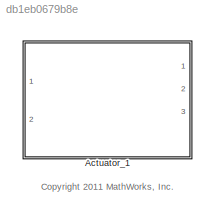
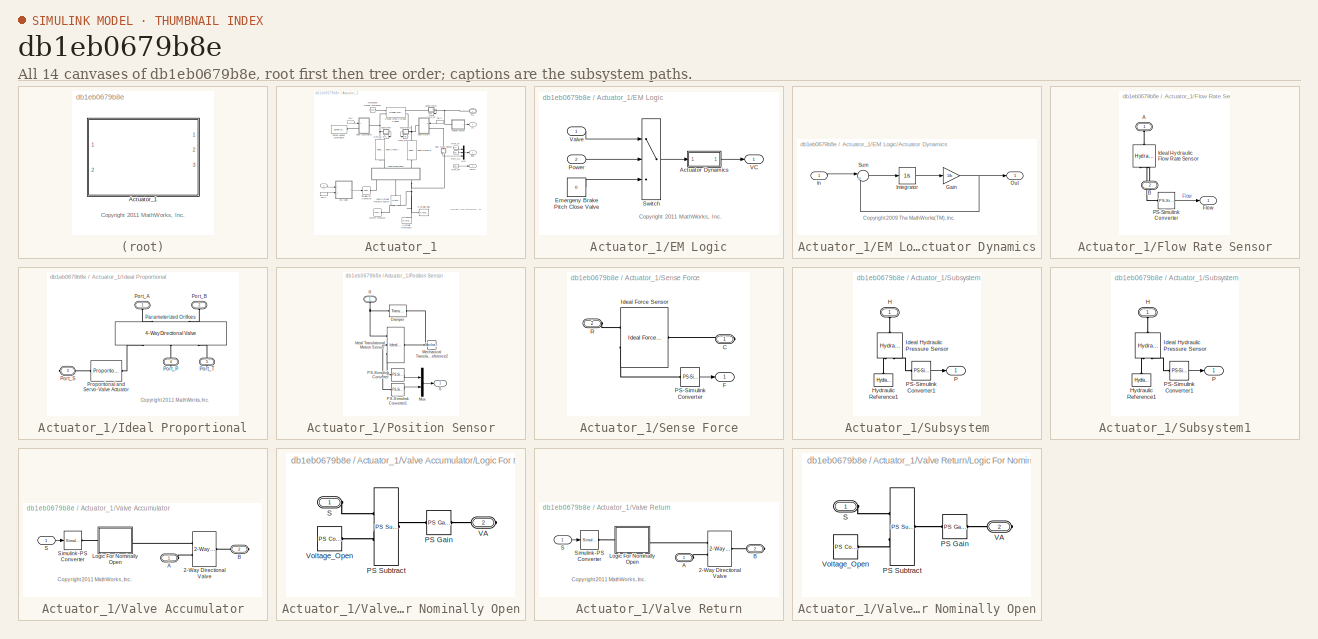
[diagram: thumbnail index - all 14 canvases of the model, root first then tree order]
MODEL slx_db1eb0679b8e
KIND library
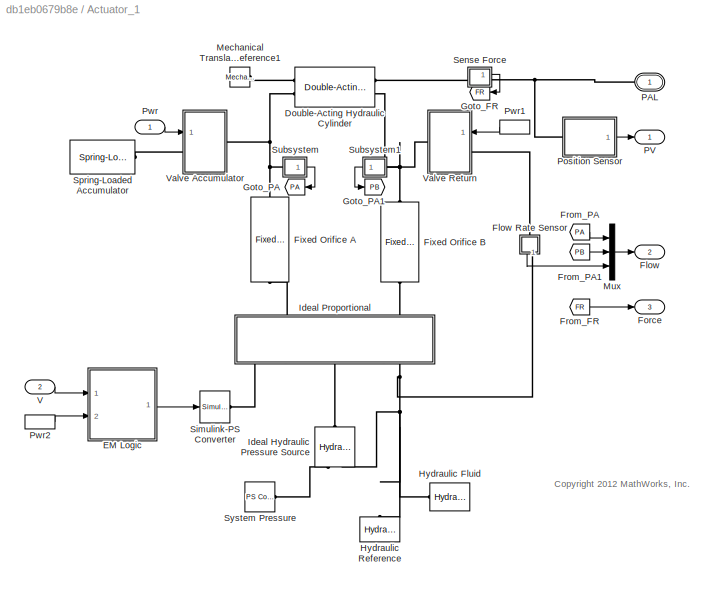
BLOCK [SubSystem] Actuator_1
  FunctionWithSeparateData = off
  MaskHideContents = off
  MinAlgLoopOccurrences = off
  Opaque = off
  Ports = [2, 3, 0, 0, 0, 0, 1]
  PropExecContextOutsideSubsystem = off
  RTWSystemCode = Auto
  RequestExecContextInheritance = off
BLOCK [Reference] Actuator_1/Double-Acting Hydraulic Cylinder  REF=sh_lib/Hydraulic Cylinders/Double-Acting
Hydraulic Cylinder
  ClassName = cylinder_da
  ComponentPath = sh.cylinders.cylinder_da
  ComponentVariantNames = cylinder_da
  ComponentVariants = sh.cylinders.cylinder_da
  D = WT_Params.Pitch_Actuator.Cylinder.contact_damping
  D_unit = N/(m/s)
  LocalVarLogging = []
  Ports = [0, 0, 0, 0, 0, 2, 2]
  SchemaVersion = 1
  SourceBlock = sh_lib/Hydraulic Cylinders/Double-Acting\nHydraulic Cylinder
  SourceFile = sh.cylinders.cylinder_da
  SourceType = Double-Acting\nHydraulic Cylinder
  area_A = WT_Params.Pitch_Actuator.Cylinder.piston_area
  area_A_unit = m^2
  area_B = WT_Params.Pitch_Actuator.Cylinder.piston_area
  area_B_unit = m^2
  dead_vol_A = 1e-04
  dead_vol_A_unit = m^3
  dead_vol_B = 1e-04
  dead_vol_B_unit = m^3
  init_pos = WT_Params.Pitch_Actuator.Cylinder.initial_disp_from_a
  init_pos_unit = m
  init_pressure_A = 0
  init_pressure_A_unit = Pa
  init_pressure_B = 0
  init_pressure_B_unit = Pa
  k_sh = 1.4
  k_sh_unit = 1
  or = 2
  or_unit = 1
  stiff = WT_Params.Pitch_Actuator.Cylinder.contact_stiffness
  stiff_unit = N/m
  stroke = WT_Params.Pitch_Actuator.Cylinder.stroke
  stroke_unit = m
BLOCK [SubSystem] Actuator_1/EM Logic
  FunctionWithSeparateData = off
  MaskHideContents = off
  MinAlgLoopOccurrences = off
  Opaque = off
  Ports = [2, 1]
  PropExecContextOutsideSubsystem = off
  RTWSystemCode = Auto
  RequestExecContextInheritance = off
BLOCK [SubSystem] Actuator_1/EM Logic/Actuator Dynamics
  FunctionWithSeparateData = off
  MaskHideContents = off
  MinAlgLoopOccurrences = off
  Opaque = off
  Ports = [1, 1]
  PropExecContextOutsideSubsystem = off
  RTWSystemCode = Auto
  RequestExecContextInheritance = off
BLOCK [Gain] Actuator_1/EM Logic/Actuator Dynamics/Gain
  Gain = 1/b
  OutDataTypeStr = Inherit: Inherit via internal rule
  ParamDataTypeStr = Inherit: Inherit via internal rule
  SaturateOnIntegerOverflow = off
BLOCK [Inport] Actuator_1/EM Logic/Actuator Dynamics/In
  IconDisplay = Port number
BLOCK [Integrator] Actuator_1/EM Logic/Actuator Dynamics/Integrator
  InitialCondition = x_initial
  Ports = [1, 1]
BLOCK [Outport] Actuator_1/EM Logic/Actuator Dynamics/Out
  IconDisplay = Port number
BLOCK [Sum] Actuator_1/EM Logic/Actuator Dynamics/Sum
  IconShape = round
  Inputs = |+-
  Ports = [2, 1]
BLOCK [Constant] Actuator_1/EM Logic/Emergeny Brake Pitch Close Valve
  Value = 0
BLOCK [Inport] Actuator_1/EM Logic/Power
  IconDisplay = Port number
  Port = 2
BLOCK [Switch] Actuator_1/EM Logic/Switch
  Criteria = u2 > Threshold
  InputSameDT = off
  SaturateOnIntegerOverflow = off
BLOCK [Outport] Actuator_1/EM Logic/VC
  IconDisplay = Port number
BLOCK [Inport] Actuator_1/EM Logic/Valve
  IconDisplay = Port number
BLOCK [Reference] Actuator_1/Fixed Orifice A  REF=sh_lib/Orifices/Fixed Orifice
  C_d = 0.7
  C_d_unit = 1
  ClassName = orifice_fixed
  ComponentPath = sh.orifices.orifice_fixed
  ComponentVariantNames = orifice_fixed
  ComponentVariants = sh.orifices.orifice_fixed
  LocalVarDescs = |Flow rate through the orifice (m^3/s)|Pressure drop across the orifice (Pa)|Reynolds number|Power (W)
  LocalVarLogging = [0 0 0 0]
  LocalVarNames = |flow_rate|pr_drop|Re|power
  Ports = [0, 0, 0, 0, 0, 1, 1]
  Re_Log = off
  Re_cr = 12
  Re_cr_unit = 1
  SchemaVersion = 1
  SourceBlock = sh_lib/Orifices/Fixed Orifice
  SourceFile = sh.orifices.orifice_fixed
  SourceType = Fixed Orifice
  area = WT_Params.Pitch_Actuator.orifice_area
  area_unit = m^2
  flow_rate_Log = off
  power_Log = off
  pr_drop_Log = off
BLOCK [Reference] Actuator_1/Fixed Orifice B  REF=sh_lib/Orifices/Fixed Orifice
  C_d = 0.7
  C_d_unit = 1
  ClassName = orifice_fixed
  ComponentPath = sh.orifices.orifice_fixed
  ComponentVariantNames = orifice_fixed
  ComponentVariants = sh.orifices.orifice_fixed
  LocalVarDescs = |Flow rate through the orifice (m^3/s)|Pressure drop across the orifice (Pa)|Reynolds number|Power (W)
  LocalVarLogging = [0 0 0 0]
  LocalVarNames = |flow_rate|pr_drop|Re|power
  Ports = [0, 0, 0, 0, 0, 1, 1]
  Re_Log = off
  Re_cr = 12
  Re_cr_unit = 1
  SchemaVersion = 1
  SourceBlock = sh_lib/Orifices/Fixed Orifice
  SourceFile = sh.orifices.orifice_fixed
  SourceType = Fixed Orifice
  area = WT_Params.Pitch_Actuator.orifice_area
  area_unit = m^2
  flow_rate_Log = off
  power_Log = off
  pr_drop_Log = off
BLOCK [Outport] Actuator_1/Flow
  IconDisplay = Port number
  Port = 2
BLOCK [SubSystem] Actuator_1/Flow Rate Sensor
  FunctionWithSeparateData = off
  MaskHideContents = off
  MinAlgLoopOccurrences = off
  Opaque = off
  Ports = [0, 1, 0, 0, 0, 1, 1]
  PropExecContextOutsideSubsystem = off
  RTWSystemCode = Auto
  RequestExecContextInheritance = off
BLOCK [PMIOPort] Actuator_1/Flow Rate Sensor/A
  Port = 1
  Side = Left
BLOCK [PMIOPort] Actuator_1/Flow Rate Sensor/B
  Port = 2
  Side = Right
BLOCK [Outport] Actuator_1/Flow Rate Sensor/Flow
  IconDisplay = Port number
BLOCK [Reference] Actuator_1/Flow Rate Sensor/Ideal Hydraulic Flow Rate Sensor  REF=fl_lib/Hydraulic/Hydraulic Sensors/Hydraulic Flow Rate
Sensor
  ClassName = sensor_flow_rate
  ComponentPath = foundation.hydraulic.sensors.flow_rate
  ComponentVariantNames = flow_rate
  ComponentVariants = foundation.hydraulic.sensors.flow_rate
  LocalVarDescs = |q|p
  LocalVarLogging = []
  LocalVarNames = |q|p
  Ports = [0, 0, 0, 0, 0, 1, 2]
  SchemaVersion = 1
  SourceBlock = fl_lib/Hydraulic/Hydraulic Sensors/Hydraulic Flow Rate\nSensor
  SourceFile = foundation.hydraulic.sensors.flow_rate
  SourceType = Hydraulic Flow Rate\nSensor
  p_Log = off
  q_Log = off
BLOCK [Reference] Actuator_1/Flow Rate Sensor/PS-Simulink Converter  REF=nesl_utility/PS-Simulink
Converter
  AffineConversion = off
  FunctionWithSeparateData = off
  GeneratePreprocessorConditionals = off
  LeftPortType = input
  PhysicalDomain = network_engine_domain
  Ports = [0, 1, 0, 0, 0, 1]
  RTWMemSecDataConstants = Inherit from model
  RTWMemSecDataInternal = Inherit from model
  RTWMemSecDataParameters = Inherit from model
  RTWMemSecFuncExecute = Inherit from model
  RTWMemSecFuncInitTerm = Inherit from model
  RightPortType = output
  ShowPortLabels = FromPortIcon
  SourceBlock = nesl_utility/PS-Simulink\nConverter
  SourceType = PS-Simulink\nConverter
  SubClassName = ps_output
  SystemSampleTime = -1
  Unit = 1
BLOCK [Outport] Actuator_1/Force
  IconDisplay = Port number
  Port = 3
BLOCK [From] Actuator_1/From_FR
  CloseFcn = tagdialog Close
  GotoTag = FR
BLOCK [From] Actuator_1/From_PA
  CloseFcn = tagdialog Close
  GotoTag = PA
BLOCK [From] Actuator_1/From_PA1
  CloseFcn = tagdialog Close
  GotoTag = PB
BLOCK [Goto] Actuator_1/Goto_FR
  GotoTag = FR
BLOCK [Goto] Actuator_1/Goto_PA
  GotoTag = PA
BLOCK [Goto] Actuator_1/Goto_PA1
  GotoTag = PB
BLOCK [Reference] Actuator_1/Hydraulic Fluid  REF=sh_lib/Hydraulic Utilities/Hydraulic Fluid
  ClassName = hydraulic_fluid
  ComponentPath = sh.utilities.hydraulic_fluid
  ComponentVariantNames = hydraulic_fluid
  ComponentVariants = sh.utilities.hydraulic_fluid
  DataSource = 1
  DataSource_unit = 1
  LocalVarLogging = []
  Ports = [0, 0, 0, 0, 0, 0, 1]
  SchemaVersion = 1
  SelFluid = 1
  SelFluid_unit = 1
  SourceBlock = sh_lib/Hydraulic Utilities/Hydraulic Fluid
  SourceFile = sh.utilities.hydraulic_fluid
  SourceType = Hydraulic Fluid
  SysTemp = 60
  SysTemp_unit = c
  TrapAir = 0.005
  TrapAir_unit = 1
  ViscDerFactor = 1
  ViscDerFactor_unit = 1
BLOCK [Reference] Actuator_1/Hydraulic Reference  REF=fl_lib/Hydraulic/Hydraulic Elements/Hydraulic Reference
  ClassName = hydro_reference
  ComponentPath = foundation.hydraulic.elements.reference
  ComponentVariantNames = reference
  ComponentVariants = foundation.hydraulic.elements.reference
  LocalVarDescs = |q
  LocalVarLogging = []
  LocalVarNames = |q
  Ports = [0, 0, 0, 0, 0, 1]
  SchemaVersion = 1
  SourceBlock = fl_lib/Hydraulic/Hydraulic Elements/Hydraulic Reference
  SourceFile = foundation.hydraulic.elements.reference
  SourceType = Hydraulic Reference
  q_Log = off
BLOCK [Reference] Actuator_1/Ideal Hydraulic Pressure Source  REF=fl_lib/Hydraulic/Hydraulic Sources/Hydraulic Pressure
Source
  ClassName = pressure_src
  ComponentPath = foundation.hydraulic.sources.pressure
  ComponentVariantNames = pressure
  ComponentVariants = foundation.hydraulic.sources.pressure
  LocalVarDescs = |Flow rate through the source (m^3/s)|Pressure differential across the source (Pa)|Source power (W)
  LocalVarLogging = [0 0 0]
  LocalVarNames = |flow_rate|pr_differential|power
  Ports = [0, 0, 0, 0, 0, 1, 2]
  SchemaVersion = 1
  SourceBlock = fl_lib/Hydraulic/Hydraulic Sources/Hydraulic Pressure\nSource
  SourceFile = foundation.hydraulic.sources.pressure
  SourceType = Hydraulic Pressure\nSource
  p_Log = off
  q_Log = off
BLOCK [SubSystem] Actuator_1/Ideal Proportional
  FunctionWithSeparateData = off
  MaskHideContents = off
  MinAlgLoopOccurrences = off
  Opaque = off
  Ports = [0, 0, 0, 0, 0, 2, 3]
  PropExecContextOutsideSubsystem = off
  RTWSystemCode = Auto
  RequestExecContextInheritance = off
BLOCK [Reference] Actuator_1/Ideal Proportional/Parameterized Orifices  REF=sh_lib/Valves/Directional Valves/4-Way Directional
Valve
  A_leak = WT_Params.Pitch_Actuator.Valve.leakage_area
  A_leak_unit = m^2
  C_d = 0.7
  C_d_unit = 1
  ClassName = valve_dir_4_way
  ComponentPath = sh.valves.directional_valves.valve_dir_4_way
  ComponentVariantNames = valve_dir_4_way
  ComponentVariants = sh.valves.directional_valves.valve_dir_4_way
  LocalVarLogging = []
  Ports = [0, 0, 0, 0, 0, 2, 3]
  Re_cr = 12
  Re_cr_unit = 1
  SchemaVersion = 1
  SourceBlock = sh_lib/Valves/Directional Valves/4-Way Directional\nValve
  SourceFile = sh.valves.directional_valves.valve_dir_4_way
  SourceType = 4-Way Directional\nValve
  area_max = WT_Params.Pitch_Actuator.Valve.max_area
  area_max_unit = m^2
  area_tab = [  1e-09 2.0352e-07 4.0736e-05 0.00011438 0.00034356 ]
  area_tab_unit = m^2
  extrap_method = 1
  extrap_method_unit = 1
  flow_rate_tab = [  -1e-07 -7.0711e-08 -4.4721e-08 4.4721e-08 7.0711e-08 1e-07 ; -2.0352e-05 -1.4391e-05 -9.1017e-06 9.1017e-06 1.4391e-05 2.0352e-05 ; -0.0040736 -0.0028805 -0.0018218 0.0018218 0.0028805 0.0040736 ; -0.011438 -0.0080879 -0.0051152 0.0051152 0.0080879 0.011438 ; -0.034356 -0.024293 -0.015364 0.015364 0.024293 0.034356 ; ]  <repeated x3 — deduplicated; at blocks: Parameterized Orifices, 2-Way Directional Valve>
  flow_rate_tab_unit = m^3/s
  interp_method = 1
  interp_method_unit = 1
  mdl_type = 1
  mdl_type_unit = 1
  opening_max = WT_Params.Pitch_Actuator.Valve.max_opening
  opening_max_unit = m
  opening_tab = [  -0.002 0 0.002 0.005 0.015 ]
  opening_tab_unit = m
  pressure_tab = [  -1e+07 -5e+06 -2e+06 2e+06 5e+06 1e+07 ]
  pressure_tab_unit = Pa
  x_0_A_T = WT_Params.Pitch_Actuator.Valve.initial_opening_at
  x_0_A_T_unit = m
  x_0_B_T = WT_Params.Pitch_Actuator.Valve.initial_opening_bt
  x_0_B_T_unit = m
  x_0_P_A = WT_Params.Pitch_Actuator.Valve.initial_opening_pa
  x_0_P_A_unit = m
  x_0_P_B = WT_Params.Pitch_Actuator.Valve.initial_opening_pb
  x_0_P_B_unit = m
BLOCK [PMIOPort] Actuator_1/Ideal Proportional/Port_A
  Port = 1
  Side = Left
BLOCK [PMIOPort] Actuator_1/Ideal Proportional/Port_B
  Port = 2
  Side = Left
BLOCK [PMIOPort] Actuator_1/Ideal Proportional/Port_P
  Port = 4
  Side = Right
BLOCK [PMIOPort] Actuator_1/Ideal Proportional/Port_S
  Port = 3
  Side = Right
BLOCK [PMIOPort] Actuator_1/Ideal Proportional/Port_T
  Port = 5
  Side = Right
BLOCK [Reference] Actuator_1/Ideal Proportional/Proportional and Servo-Valve Actuator  REF=sh_lib/Valves/Valve Actuators/Proportional and
Servo-Valve Actuator
  ClassName = act_prop_valve
  ComponentPath = sh.valves.valve_actuators.act_prop_valve
  ComponentVariantNames = act_prop_valve
  ComponentVariants = sh.valves.valve_actuators.act_prop_valve
  LocalVarLogging = []
  Ports = [0, 0, 0, 0, 0, 1, 1]
  SchemaVersion = 1
  SourceBlock = sh_lib/Valves/Valve Actuators/Proportional and\nServo-Valve Actuator
  SourceFile = sh.valves.valve_actuators.act_prop_valve
  SourceType = Proportional and\nServo-Valve Actuator
  gain = WT_Params.Pitch_Actuator.Servo.gain
  gain_unit = 1
  saturation = WT_Params.Pitch_Actuator.Servo.saturation
  saturation_unit = 1
  time_constant = WT_Params.Pitch_Actuator.Servo.time_constant
  time_constant_unit = s
BLOCK [Reference] Actuator_1/Mechanical Translational Reference1  REF=fl_lib/Mechanical/Translational
Elements/Mechanical
Translational
Reference
  ClassName = reference_transl
  ComponentPath = foundation.mechanical.translational.reference
  ComponentVariantNames = reference
  ComponentVariants = foundation.mechanical.translational.reference
  LocalVarDescs = |f
  LocalVarLogging = []
  LocalVarNames = |f
  Ports = [0, 0, 0, 0, 0, 1]
  SchemaVersion = 1
  SourceBlock = fl_lib/Mechanical/Translational\nElements/Mechanical\nTranslational\nReference
  SourceFile = foundation.mechanical.translational.reference
  SourceType = Mechanical\nTranslational\nReference
  Tag = Factory Generic
  f_Log = off
BLOCK [Mux] Actuator_1/Mux
  DisplayOption = bar
  Inputs = 3
  Ports = [3, 1]
BLOCK [PMIOPort] Actuator_1/PAL
  Port = 1
  Side = Right
  Tag = PMCPort
BLOCK [Outport] Actuator_1/PV
  IconDisplay = Port number
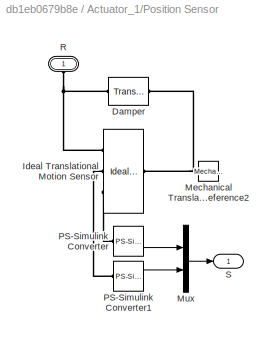
BLOCK [SubSystem] Actuator_1/Position Sensor
  FunctionWithSeparateData = off
  MaskHideContents = off
  MinAlgLoopOccurrences = off
  Opaque = off
  Ports = [0, 1, 0, 0, 0, 1]
  PropExecContextOutsideSubsystem = off
  RTWSystemCode = Auto
  RequestExecContextInheritance = off
BLOCK [Reference] Actuator_1/Position Sensor/Damper  REF=fl_lib/Mechanical/Translational
Elements/Translational Damper
  ClassName = damper_transl
  ComponentPath = foundation.mechanical.translational.damper
  ComponentVariantNames = damper
  ComponentVariants = foundation.mechanical.translational.damper
  D = WT_Params.Pitch_Actuator.Cylinder.damping
  D_unit = N/(m/s)
  LocalVarDescs = |Damping force (N)|Damper relative velocity (m/s)|Power dissipated in the damper (W)
  LocalVarLogging = [0 0 0]
  LocalVarNames = |force|rel_velocity|power
  Ports = [0, 0, 0, 0, 0, 1, 1]
  SchemaVersion = 1
  SourceBlock = fl_lib/Mechanical/Translational\nElements/Translational Damper
  SourceFile = foundation.mechanical.translational.damper
  SourceType = Translational Damper
  f_Log = off
  v_Log = off
BLOCK [Reference] Actuator_1/Position Sensor/Ideal Translational Motion Sensor  REF=fl_lib/Mechanical/Mechanical Sensors/Ideal Translational
Motion Sensor
  ClassName = sensor_transl_motion
  ComponentPath = foundation.mechanical.sensors.velocity
  ComponentVariantNames = velocity
  ComponentVariants = foundation.mechanical.sensors.velocity
  LocalVarDescs = |v|f|x
  LocalVarLogging = []
  LocalVarNames = |v|f|x
  Ports = [0, 0, 0, 0, 0, 1, 3]
  SchemaVersion = 1
  SourceBlock = fl_lib/Mechanical/Mechanical Sensors/Ideal Translational\nMotion Sensor
  SourceFile = foundation.mechanical.sensors.velocity
  SourceType = Ideal Translational\nMotion Sensor
  f_Log = off
  offset = WT_Params.Pitch_Actuator.Sensor.initial_position
  offset_unit = m
  v_Log = off
  x_Log = off
BLOCK [Reference] Actuator_1/Position Sensor/Mechanical Translational Reference2  REF=fl_lib/Mechanical/Translational
Elements/Mechanical
Translational
Reference
  ClassName = reference_transl
  ComponentPath = foundation.mechanical.translational.reference
  FunctionWithSeparateData = off
  GeneratePreprocessorConditionals = off
  LocalVarDescs = |f
  LocalVarLogging = []
  LocalVarNames = |f
  Ports = [0, 0, 0, 0, 0, 1]
  RTWMemSecDataConstants = Inherit from model
  RTWMemSecDataInternal = Inherit from model
  RTWMemSecDataParameters = Inherit from model
  RTWMemSecFuncExecute = Inherit from model
  RTWMemSecFuncInitTerm = Inherit from model
  SchemaVersion = 1
  ShowPortLabels = FromPortIcon
  SourceBlock = fl_lib/Mechanical/Translational\nElements/Mechanical\nTranslational\nReference
  SourceType = Mechanical\nTranslational\nReference
  SystemSampleTime = -1
  Tag = Factory Generic
  f_Log = off
BLOCK [Mux] Actuator_1/Position Sensor/Mux
  DisplayOption = bar
  Inputs = 2
  Ports = [2, 1]
BLOCK [Reference] Actuator_1/Position Sensor/PS-Simulink Converter  REF=nesl_utility/PS-Simulink
Converter
  AffineConversion = off
  FunctionWithSeparateData = off
  GeneratePreprocessorConditionals = off
  LeftPortType = input
  PhysicalDomain = network_engine_domain
  Ports = [0, 1, 0, 0, 0, 1]
  RTWMemSecDataConstants = Inherit from model
  RTWMemSecDataInternal = Inherit from model
  RTWMemSecDataParameters = Inherit from model
  RTWMemSecFuncExecute = Inherit from model
  RTWMemSecFuncInitTerm = Inherit from model
  RightPortType = output
  ShowPortLabels = FromPortIcon
  SourceBlock = nesl_utility/PS-Simulink\nConverter
  SourceType = PS-Simulink\nConverter
  SubClassName = ps_output
  SystemSampleTime = -1
  Unit = 1
BLOCK [Reference] Actuator_1/Position Sensor/PS-Simulink Converter1  REF=nesl_utility/PS-Simulink
Converter
  AffineConversion = off
  FunctionWithSeparateData = off
  GeneratePreprocessorConditionals = off
  LeftPortType = input
  PhysicalDomain = network_engine_domain
  Ports = [0, 1, 0, 0, 0, 1]
  RTWMemSecDataConstants = Inherit from model
  RTWMemSecDataInternal = Inherit from model
  RTWMemSecDataParameters = Inherit from model
  RTWMemSecFuncExecute = Inherit from model
  RTWMemSecFuncInitTerm = Inherit from model
  RightPortType = output
  ShowPortLabels = FromPortIcon
  SourceBlock = nesl_utility/PS-Simulink\nConverter
  SourceType = PS-Simulink\nConverter
  SubClassName = ps_output
  SystemSampleTime = -1
  Unit = 1
BLOCK [PMIOPort] Actuator_1/Position Sensor/R
  Port = 1
  Side = Left
BLOCK [Outport] Actuator_1/Position Sensor/S
  IconDisplay = Port number
BLOCK [Inport] Actuator_1/Pwr
  IconDisplay = Port number
BLOCK [InportShadow] Actuator_1/Pwr1
  IconDisplay = Port number
  LatchByDelayingOutsideSignal = off
  LatchInputForFeedbackSignals = off
BLOCK [InportShadow] Actuator_1/Pwr2
  IconDisplay = Port number
  LatchByDelayingOutsideSignal = off
  LatchInputForFeedbackSignals = off
BLOCK [SubSystem] Actuator_1/Sense Force
  FunctionWithSeparateData = off
  MaskHideContents = off
  MinAlgLoopOccurrences = off
  Opaque = off
  Ports = [0, 1, 0, 0, 0, 1, 1]
  PropExecContextOutsideSubsystem = off
  RTWSystemCode = Auto
  RequestExecContextInheritance = off
BLOCK [PMIOPort] Actuator_1/Sense Force/C
  Port = 1
  Side = Right
BLOCK [Outport] Actuator_1/Sense Force/F
  IconDisplay = Port number
BLOCK [Reference] Actuator_1/Sense Force/Ideal Force Sensor  REF=fl_lib/Mechanical/Mechanical Sensors/Ideal Force Sensor
  ClassName = sensor_force
  ComponentPath = foundation.mechanical.sensors.force
  ComponentVariantNames = force
  ComponentVariants = foundation.mechanical.sensors.force
  LocalVarDescs = |v|f
  LocalVarLogging = []
  LocalVarNames = |v|f
  Ports = [0, 0, 0, 0, 0, 1, 2]
  SchemaVersion = 1
  SourceBlock = fl_lib/Mechanical/Mechanical Sensors/Ideal Force Sensor
  SourceFile = foundation.mechanical.sensors.force
  SourceType = Ideal Force Sensor
  f_Log = off
  v_Log = off
BLOCK [Reference] Actuator_1/Sense Force/PS-Simulink Converter  REF=nesl_utility/PS-Simulink
Converter
  AffineConversion = off
  FunctionWithSeparateData = off
  GeneratePreprocessorConditionals = off
  LeftPortType = input
  PhysicalDomain = network_engine_domain
  Ports = [0, 1, 0, 0, 0, 1]
  RTWMemSecDataConstants = Inherit from model
  RTWMemSecDataInternal = Inherit from model
  RTWMemSecDataParameters = Inherit from model
  RTWMemSecFuncExecute = Inherit from model
  RTWMemSecFuncInitTerm = Inherit from model
  RightPortType = output
  ShowPortLabels = FromPortIcon
  SourceBlock = nesl_utility/PS-Simulink\nConverter
  SourceType = PS-Simulink\nConverter
  SubClassName = ps_output
  SystemSampleTime = -1
  Unit = 1
BLOCK [PMIOPort] Actuator_1/Sense Force/R
  Port = 2
  Side = Left
BLOCK [Reference] Actuator_1/Simulink-PS Converter  REF=nesl_utility/Simulink-PS
Converter
  AffineConversion = off
  Frequencies = []
  InputFilterTimeConstant = .001
  InputFiltering = off
  LeftPortType = input
  NoiseDistribution = none
  NoiseParameters = []
  PhysicalDomain = network_engine_domain
  Ports = [1, 0, 0, 0, 0, 0, 1]
  PseudoPeriodic = off
  RightPortType = output
  SimscapeFilterOrder = 1
  SourceBlock = nesl_utility/Simulink-PS\nConverter
  SourceType = Simulink-PS\nConverter
  SubClassName = ps_input
  UdotUserProvided = 0
  Unit = 1
BLOCK [Reference] Actuator_1/Spring-Loaded Accumulator  REF=sh_lib/Accumulators/Spring-Loaded
Accumulator
  ClassName = accumulator_spr
  ComponentPath = sh.accumulators.accumulator_spr
  ComponentVariantNames = accumulator_spr
  ComponentVariants = sh.accumulators.accumulator_spr
  LocalVarDescs = |Accumulator flow rate (m^3/s)|Fluid pressure (Pa)|Initial fluid volume (m^3)
  LocalVarLogging = [0 0 0]
  LocalVarNames = |flow_rate|pr_fluid|fluid_volume
  Ports = [0, 0, 0, 0, 0, 0, 1]
  SchemaVersion = 1
  SourceBlock = sh_lib/Accumulators/Spring-Loaded\nAccumulator
  SourceFile = sh.accumulators.accumulator_spr
  SourceType = Spring-Loaded\nAccumulator
  capacity = WT_Params.Pitch_Actuator.Accumulator.capacity
  capacity_unit = m^3
  flow_rate_Log = off
  fluid_volume_Log = off
  pr_fluid_Log = off
  pr_max = WT_Params.Pitch_Actuator.Accumulator.maximum_pressure
  pr_max_unit = Pa
  pr_preload = WT_Params.Pitch_Actuator.Accumulator.preload_pressure
  pr_preload_unit = Pa
  str_compl = 4e-15
  str_compl_unit = m^3/Pa
  v_init = WT_Params.Pitch_Actuator.Accumulator.initial_volume
  v_init_unit = m^3
BLOCK [SubSystem] Actuator_1/Subsystem
  FunctionWithSeparateData = off
  MaskHideContents = off
  MinAlgLoopOccurrences = off
  Opaque = off
  Ports = [0, 1, 0, 0, 0, 1]
  PropExecContextOutsideSubsystem = off
  RTWSystemCode = Auto
  RequestExecContextInheritance = off
BLOCK [PMIOPort] Actuator_1/Subsystem/H
  Port = 1
  Side = Left
BLOCK [Reference] Actuator_1/Subsystem/Hydraulic Reference1  REF=fl_lib/Hydraulic/Hydraulic Elements/Hydraulic Reference
  ClassName = hydro_reference
  ComponentPath = foundation.hydraulic.elements.reference
  FunctionWithSeparateData = off
  GeneratePreprocessorConditionals = off
  LocalVarDescs = |q
  LocalVarLogging = []
  LocalVarNames = |q
  Ports = [0, 0, 0, 0, 0, 1]
  RTWMemSecDataConstants = Inherit from model
  RTWMemSecDataInternal = Inherit from model
  RTWMemSecDataParameters = Inherit from model
  RTWMemSecFuncExecute = Inherit from model
  RTWMemSecFuncInitTerm = Inherit from model
  SchemaVersion = 1
  ShowPortLabels = FromPortIcon
  SourceBlock = fl_lib/Hydraulic/Hydraulic Elements/Hydraulic Reference
  SourceType = Hydraulic Reference
  SystemSampleTime = -1
  q_Log = off
BLOCK [Reference] Actuator_1/Subsystem/Ideal Hydraulic Pressure Sensor  REF=fl_lib/Hydraulic/Hydraulic Sensors/Hydraulic Pressure
Sensor
  ClassName = sensor_pressure
  ComponentPath = foundation.hydraulic.sensors.pressure
  ComponentVariantNames = pressure
  ComponentVariants = foundation.hydraulic.sensors.pressure
  LocalVarDescs = |q|p
  LocalVarLogging = []
  LocalVarNames = |q|p
  Ports = [0, 0, 0, 0, 0, 1, 2]
  SchemaVersion = 1
  SourceBlock = fl_lib/Hydraulic/Hydraulic Sensors/Hydraulic Pressure\nSensor
  SourceFile = foundation.hydraulic.sensors.pressure
  SourceType = Hydraulic Pressure\nSensor
  p_Log = off
  q_Log = off
BLOCK [Outport] Actuator_1/Subsystem/P
  IconDisplay = Port number
BLOCK [Reference] Actuator_1/Subsystem/PS-Simulink Converter1  REF=nesl_utility/PS-Simulink
Converter
  AffineConversion = off
  FunctionWithSeparateData = off
  GeneratePreprocessorConditionals = off
  LeftPortType = input
  PhysicalDomain = network_engine_domain
  Ports = [0, 1, 0, 0, 0, 1]
  RTWMemSecDataConstants = Inherit from model
  RTWMemSecDataInternal = Inherit from model
  RTWMemSecDataParameters = Inherit from model
  RTWMemSecFuncExecute = Inherit from model
  RTWMemSecFuncInitTerm = Inherit from model
  RightPortType = output
  ShowPortLabels = FromPortIcon
  SourceBlock = nesl_utility/PS-Simulink\nConverter
  SourceType = PS-Simulink\nConverter
  SubClassName = ps_output
  SystemSampleTime = -1
  Unit = 1
BLOCK [SubSystem] Actuator_1/Subsystem1
  FunctionWithSeparateData = off
  MaskHideContents = off
  MinAlgLoopOccurrences = off
  Opaque = off
  Ports = [0, 1, 0, 0, 0, 1]
  PropExecContextOutsideSubsystem = off
  RTWSystemCode = Auto
  RequestExecContextInheritance = off
BLOCK [PMIOPort] Actuator_1/Subsystem1/H
  Port = 1
  Side = Left
BLOCK [Reference] Actuator_1/Subsystem1/Hydraulic Reference1  REF=fl_lib/Hydraulic/Hydraulic Elements/Hydraulic Reference
  ClassName = hydro_reference
  ComponentPath = foundation.hydraulic.elements.reference
  FunctionWithSeparateData = off
  GeneratePreprocessorConditionals = off
  LocalVarDescs = |q
  LocalVarLogging = []
  LocalVarNames = |q
  Ports = [0, 0, 0, 0, 0, 1]
  RTWMemSecDataConstants = Inherit from model
  RTWMemSecDataInternal = Inherit from model
  RTWMemSecDataParameters = Inherit from model
  RTWMemSecFuncExecute = Inherit from model
  RTWMemSecFuncInitTerm = Inherit from model
  SchemaVersion = 1
  ShowPortLabels = FromPortIcon
  SourceBlock = fl_lib/Hydraulic/Hydraulic Elements/Hydraulic Reference
  SourceType = Hydraulic Reference
  SystemSampleTime = -1
  q_Log = off
BLOCK [Reference] Actuator_1/Subsystem1/Ideal Hydraulic Pressure Sensor  REF=fl_lib/Hydraulic/Hydraulic Sensors/Hydraulic Pressure
Sensor
  ClassName = sensor_pressure
  ComponentPath = foundation.hydraulic.sensors.pressure
  ComponentVariantNames = pressure
  ComponentVariants = foundation.hydraulic.sensors.pressure
  LocalVarDescs = |q|p
  LocalVarLogging = []
  LocalVarNames = |q|p
  Ports = [0, 0, 0, 0, 0, 1, 2]
  SchemaVersion = 1
  SourceBlock = fl_lib/Hydraulic/Hydraulic Sensors/Hydraulic Pressure\nSensor
  SourceFile = foundation.hydraulic.sensors.pressure
  SourceType = Hydraulic Pressure\nSensor
  p_Log = off
  q_Log = off
BLOCK [Outport] Actuator_1/Subsystem1/P
  IconDisplay = Port number
BLOCK [Reference] Actuator_1/Subsystem1/PS-Simulink Converter1  REF=nesl_utility/PS-Simulink
Converter
  AffineConversion = off
  FunctionWithSeparateData = off
  GeneratePreprocessorConditionals = off
  LeftPortType = input
  PhysicalDomain = network_engine_domain
  Ports = [0, 1, 0, 0, 0, 1]
  RTWMemSecDataConstants = Inherit from model
  RTWMemSecDataInternal = Inherit from model
  RTWMemSecDataParameters = Inherit from model
  RTWMemSecFuncExecute = Inherit from model
  RTWMemSecFuncInitTerm = Inherit from model
  RightPortType = output
  ShowPortLabels = FromPortIcon
  SourceBlock = nesl_utility/PS-Simulink\nConverter
  SourceType = PS-Simulink\nConverter
  SubClassName = ps_output
  SystemSampleTime = -1
  Unit = 1
BLOCK [Reference] Actuator_1/System Pressure  REF=fl_lib/Physical Signals/Sources/PS Constant
  ClassName = ps_constant
  ComponentPath = foundation.physical_signal.sources.constant
  ComponentVariantNames = constant
  ComponentVariants = foundation.physical_signal.sources.constant
  LocalVarLogging = []
  Ports = [0, 0, 0, 0, 0, 0, 1]
  SchemaVersion = 1
  SourceBlock = fl_lib/Physical Signals/Sources/PS Constant
  SourceFile = foundation.physical_signal.sources.constant
  SourceType = PS Constant
  constant = WT_Params.Pitch_Actuator.hydraulic_pressure
  constant_unit = 1
BLOCK [Inport] Actuator_1/V
  IconDisplay = Port number
  Port = 2
BLOCK [SubSystem] Actuator_1/Valve Accumulator
  FunctionWithSeparateData = off
  MaskHideContents = off
  MinAlgLoopOccurrences = off
  Opaque = off
  Ports = [1, 0, 0, 0, 0, 1, 1]
  PropExecContextOutsideSubsystem = off
  RTWSystemCode = Auto
  RequestExecContextInheritance = off
BLOCK [Reference] Actuator_1/Valve Accumulator/2-Way Directional Valve  REF=sh_lib/Valves/Directional Valves/2-Way Directional
Valve
  A_leak = 1e-12
  A_leak_unit = m^2
  C_d = 0.7
  C_d_unit = 1
  ClassName = valve_dir_2_way
  ComponentPath = sh.valves.directional_valves.valve_dir_2_way
  ComponentVariantNames = valve_dir_2_way
  ComponentVariants = sh.valves.directional_valves.valve_dir_2_way
  LocalVarLogging = []
  Ports = [0, 0, 0, 0, 0, 2, 1]
  Re_cr = 12
  Re_cr_unit = 1
  SchemaVersion = 1
  SourceBlock = sh_lib/Valves/Directional Valves/2-Way Directional\nValve
  SourceFile = sh.valves.directional_valves.valve_dir_2_way
  SourceType = 2-Way Directional\nValve
  area_max = WT_Params.Pitch_Actuator.Emergency_Pitch_Valve.max_area
  area_max_unit = m^2
  area_tab = [  1e-09 2.0352e-07 4.0736e-05 0.00011438 0.00034356 ]
  area_tab_unit = m^2
  extrap_method = 1
  extrap_method_unit = 1
  flow_rate_tab_unit = m^3/s
  interp_method = 1
  interp_method_unit = 1
  mdl_type = 1
  mdl_type_unit = 1
  opening_max = 0.005
  opening_max_unit = m
  opening_tab = [  -0.002 0 0.002 0.005 0.015 ]
  opening_tab_unit = m
  pressure_tab = [  -1e+07 -5e+06 -2e+06 2e+06 5e+06 1e+07 ]
  pressure_tab_unit = Pa
  x_0 = 0
  x_0_unit = m
BLOCK [PMIOPort] Actuator_1/Valve Accumulator/A
  Port = 1
  Side = Left
BLOCK [PMIOPort] Actuator_1/Valve Accumulator/B
  Port = 2
  Side = Right
BLOCK [SubSystem] Actuator_1/Valve Accumulator/Logic For Nominally Open
  FunctionWithSeparateData = off
  MaskHideContents = off
  MinAlgLoopOccurrences = off
  Opaque = off
  Ports = [0, 0, 0, 0, 0, 1, 1]
  PropExecContextOutsideSubsystem = off
  RTWSystemCode = Auto
  RequestExecContextInheritance = off
BLOCK [Reference] Actuator_1/Valve Accumulator/Logic For Nominally Open/PS Gain  REF=fl_lib/Physical Signals/Functions/PS Gain
  ClassName = ps_gain
  ComponentPath = foundation.physical_signal.functions.gain
  ComponentVariantNames = gain
  ComponentVariants = foundation.physical_signal.functions.gain
  LocalVarLogging = []
  Ports = [0, 0, 0, 0, 0, 1, 1]
  SchemaVersion = 1
  SourceBlock = fl_lib/Physical Signals/Functions/PS Gain
  SourceFile = foundation.physical_signal.functions.gain
  SourceType = PS Gain
  gain = -1
  gain_unit = 1
BLOCK [Reference] Actuator_1/Valve Accumulator/Logic For Nominally Open/PS Subtract  REF=fl_lib/Physical Signals/Functions/PS Subtract
  ClassName = ps_subtract
  ComponentPath = foundation.physical_signal.functions.subtract
  ComponentVariantNames = subtract
  ComponentVariants = foundation.physical_signal.functions.subtract
  LocalVarLogging = []
  Ports = [0, 0, 0, 0, 0, 2, 1]
  SchemaVersion = 1
  SourceBlock = fl_lib/Physical Signals/Functions/PS Subtract
  SourceFile = foundation.physical_signal.functions.subtract
  SourceType = PS Subtract
BLOCK [PMIOPort] Actuator_1/Valve Accumulator/Logic For Nominally Open/S
  Port = 1
  Side = Left
BLOCK [PMIOPort] Actuator_1/Valve Accumulator/Logic For Nominally Open/VA
  Port = 2
  Side = Right
BLOCK [Reference] Actuator_1/Valve Accumulator/Logic For Nominally Open/Voltage_Open  REF=fl_lib/Physical Signals/Sources/PS Constant
  ClassName = ps_constant
  ComponentPath = foundation.physical_signal.sources.constant
  FunctionWithSeparateData = off
  GeneratePreprocessorConditionals = off
  LocalVarLogging = []
  Ports = [0, 0, 0, 0, 0, 0, 1]
  RTWMemSecDataConstants = Inherit from model
  RTWMemSecDataInternal = Inherit from model
  RTWMemSecDataParameters = Inherit from model
  RTWMemSecFuncExecute = Inherit from model
  RTWMemSecFuncInitTerm = Inherit from model
  SchemaVersion = 1
  ShowPortLabels = FromPortIcon
  SourceBlock = fl_lib/Physical Signals/Sources/PS Constant
  SourceType = PS Constant
  SystemSampleTime = -1
  constant = 24
  constant_unit = 1
BLOCK [Inport] Actuator_1/Valve Accumulator/S
  IconDisplay = Port number
BLOCK [Reference] Actuator_1/Valve Accumulator/Simulink-PS Converter  REF=nesl_utility/Simulink-PS
Converter
  AffineConversion = off
  Frequencies = []
  InputFilterTimeConstant = .001
  InputFiltering = off
  LeftPortType = input
  NoiseDistribution = none
  NoiseParameters = []
  PhysicalDomain = network_engine_domain
  Ports = [1, 0, 0, 0, 0, 0, 1]
  PseudoPeriodic = off
  RightPortType = output
  SimscapeFilterOrder = 1
  SourceBlock = nesl_utility/Simulink-PS\nConverter
  SourceType = Simulink-PS\nConverter
  SubClassName = ps_input
  UdotUserProvided = 0
  Unit = 1
BLOCK [SubSystem] Actuator_1/Valve Return
  FunctionWithSeparateData = off
  MaskHideContents = off
  MinAlgLoopOccurrences = off
  Opaque = off
  Ports = [1, 0, 0, 0, 0, 1, 1]
  PropExecContextOutsideSubsystem = off
  RTWSystemCode = Auto
  RequestExecContextInheritance = off
BLOCK [Reference] Actuator_1/Valve Return/2-Way Directional Valve  REF=sh_lib/Valves/Directional Valves/2-Way Directional
Valve
  A_leak = 1e-12
  A_leak_unit = m^2
  C_d = 0.7
  C_d_unit = 1
  ClassName = valve_dir_2_way
  ComponentPath = sh.valves.directional_valves.valve_dir_2_way
  ComponentVariantNames = valve_dir_2_way
  ComponentVariants = sh.valves.directional_valves.valve_dir_2_way
  LocalVarLogging = []
  Ports = [0, 0, 0, 0, 0, 2, 1]
  Re_cr = 12
  Re_cr_unit = 1
  SchemaVersion = 1
  SourceBlock = sh_lib/Valves/Directional Valves/2-Way Directional\nValve
  SourceFile = sh.valves.directional_valves.valve_dir_2_way
  SourceType = 2-Way Directional\nValve
  area_max = WT_Params.Pitch_Actuator.Emergency_Pitch_Valve.max_area
  area_max_unit = m^2
  area_tab = [  1e-09 2.0352e-07 4.0736e-05 0.00011438 0.00034356 ]
  area_tab_unit = m^2
  extrap_method = 1
  extrap_method_unit = 1
  flow_rate_tab_unit = m^3/s
  interp_method = 1
  interp_method_unit = 1
  mdl_type = 1
  mdl_type_unit = 1
  opening_max = 0.005
  opening_max_unit = m
  opening_tab = [  -0.002 0 0.002 0.005 0.015 ]
  opening_tab_unit = m
  pressure_tab = [  -1e+07 -5e+06 -2e+06 2e+06 5e+06 1e+07 ]
  pressure_tab_unit = Pa
  x_0 = 0
  x_0_unit = m
BLOCK [PMIOPort] Actuator_1/Valve Return/A
  Port = 1
  Side = Left
BLOCK [PMIOPort] Actuator_1/Valve Return/B
  Port = 2
  Side = Right
BLOCK [SubSystem] Actuator_1/Valve Return/Logic For Nominally Open
  FunctionWithSeparateData = off
  MaskHideContents = off
  MinAlgLoopOccurrences = off
  Opaque = off
  Ports = [0, 0, 0, 0, 0, 1, 1]
  PropExecContextOutsideSubsystem = off
  RTWSystemCode = Auto
  RequestExecContextInheritance = off
BLOCK [Reference] Actuator_1/Valve Return/Logic For Nominally Open/PS Gain  REF=fl_lib/Physical Signals/Functions/PS Gain
  ClassName = ps_gain
  ComponentPath = foundation.physical_signal.functions.gain
  ComponentVariantNames = gain
  ComponentVariants = foundation.physical_signal.functions.gain
  LocalVarLogging = []
  Ports = [0, 0, 0, 0, 0, 1, 1]
  SchemaVersion = 1
  SourceBlock = fl_lib/Physical Signals/Functions/PS Gain
  SourceFile = foundation.physical_signal.functions.gain
  SourceType = PS Gain
  gain = -1
  gain_unit = 1
BLOCK [Reference] Actuator_1/Valve Return/Logic For Nominally Open/PS Subtract  REF=fl_lib/Physical Signals/Functions/PS Subtract
  ClassName = ps_subtract
  ComponentPath = foundation.physical_signal.functions.subtract
  ComponentVariantNames = subtract
  ComponentVariants = foundation.physical_signal.functions.subtract
  LocalVarLogging = []
  Ports = [0, 0, 0, 0, 0, 2, 1]
  SchemaVersion = 1
  SourceBlock = fl_lib/Physical Signals/Functions/PS Subtract
  SourceFile = foundation.physical_signal.functions.subtract
  SourceType = PS Subtract
BLOCK [PMIOPort] Actuator_1/Valve Return/Logic For Nominally Open/S
  Port = 1
  Side = Left
BLOCK [PMIOPort] Actuator_1/Valve Return/Logic For Nominally Open/VA
  Port = 2
  Side = Right
BLOCK [Reference] Actuator_1/Valve Return/Logic For Nominally Open/Voltage_Open  REF=fl_lib/Physical Signals/Sources/PS Constant
  ClassName = ps_constant
  ComponentPath = foundation.physical_signal.sources.constant
  FunctionWithSeparateData = off
  GeneratePreprocessorConditionals = off
  LocalVarLogging = []
  Ports = [0, 0, 0, 0, 0, 0, 1]
  RTWMemSecDataConstants = Inherit from model
  RTWMemSecDataInternal = Inherit from model
  RTWMemSecDataParameters = Inherit from model
  RTWMemSecFuncExecute = Inherit from model
  RTWMemSecFuncInitTerm = Inherit from model
  SchemaVersion = 1
  ShowPortLabels = FromPortIcon
  SourceBlock = fl_lib/Physical Signals/Sources/PS Constant
  SourceType = PS Constant
  SystemSampleTime = -1
  constant = 24
  constant_unit = 1
BLOCK [Inport] Actuator_1/Valve Return/S
  IconDisplay = Port number
BLOCK [Reference] Actuator_1/Valve Return/Simulink-PS Converter  REF=nesl_utility/Simulink-PS
Converter
  AffineConversion = off
  Frequencies = []
  InputFilterTimeConstant = .001
  InputFiltering = off
  LeftPortType = input
  NoiseDistribution = none
  NoiseParameters = []
  PhysicalDomain = network_engine_domain
  Ports = [1, 0, 0, 0, 0, 0, 1]
  PseudoPeriodic = off
  RightPortType = output
  SimscapeFilterOrder = 1
  SourceBlock = nesl_utility/Simulink-PS\nConverter
  SourceType = Simulink-PS\nConverter
  SubClassName = ps_input
  UdotUserProvided = 0
  Unit = 1
ANNOTATION (root): <copyright redacted>
ANNOTATION Actuator_1: <copyright redacted>
ANNOTATION Actuator_1/EM Logic: <copyright redacted>
ANNOTATION Actuator_1/EM Logic/Actuator Dynamics: <copyright redacted>
ANNOTATION Actuator_1/Ideal Proportional: <copyright redacted>
ANNOTATION Actuator_1/Valve Accumulator: <copyright redacted>
ANNOTATION Actuator_1/Valve Return: <copyright redacted>
NET Actuator_1/EM Logic/Actuator Dynamics/Gain:1 -> Actuator_1/EM Logic/Actuator Dynamics/Out:1, Actuator_1/EM Logic/Actuator Dynamics/Sum:2
LINE Actuator_1/EM Logic/Actuator Dynamics/In:1 -> Actuator_1/EM Logic/Actuator Dynamics/Sum:1
LINE Actuator_1/EM Logic/Actuator Dynamics/Integrator:1 -> Actuator_1/EM Logic/Actuator Dynamics/Gain:1
LINE Actuator_1/EM Logic/Actuator Dynamics/Sum:1 -> Actuator_1/EM Logic/Actuator Dynamics/Integrator:1
LINE Actuator_1/EM Logic/Actuator Dynamics:1 -> Actuator_1/EM Logic/VC:1
LINE Actuator_1/EM Logic/Emergeny Brake Pitch Close Valve:1 -> Actuator_1/EM Logic/Switch:3
LINE Actuator_1/EM Logic/Power:1 -> Actuator_1/EM Logic/Switch:2
LINE Actuator_1/EM Logic/Switch:1 -> Actuator_1/EM Logic/Actuator Dynamics:1
LINE Actuator_1/EM Logic/Valve:1 -> Actuator_1/EM Logic/Switch:1
LINE Actuator_1/EM Logic:1 -> Actuator_1/Simulink-PS Converter:1
LINE Actuator_1/Flow Rate Sensor/PS-Simulink Converter:1 -> Actuator_1/Flow Rate Sensor/Flow:1
LINE Actuator_1/Flow Rate Sensor:1 -> Actuator_1/Mux:3
LINE Actuator_1/From_FR:1 -> Actuator_1/Force:1
LINE Actuator_1/From_PA1:1 -> Actuator_1/Mux:2
LINE Actuator_1/From_PA:1 -> Actuator_1/Mux:1
LINE Actuator_1/Mux:1 -> Actuator_1/Flow:1
LINE Actuator_1/Position Sensor/Mux:1 -> Actuator_1/Position Sensor/S:1
LINE Actuator_1/Position Sensor/PS-Simulink Converter1:1 -> Actuator_1/Position Sensor/Mux:2
LINE Actuator_1/Position Sensor/PS-Simulink Converter:1 -> Actuator_1/Position Sensor/Mux:1
LINE Actuator_1/Position Sensor:1 -> Actuator_1/PV:1
LINE Actuator_1/Pwr1:1 -> Actuator_1/Valve Return:1
LINE Actuator_1/Pwr2:1 -> Actuator_1/EM Logic:2
LINE Actuator_1/Pwr:1 -> Actuator_1/Valve Accumulator:1
LINE Actuator_1/Sense Force/PS-Simulink Converter:1 -> Actuator_1/Sense Force/F:1
LINE Actuator_1/Sense Force:1 -> Actuator_1/Goto_FR:1
LINE Actuator_1/Subsystem/PS-Simulink Converter1:1 -> Actuator_1/Subsystem/P:1
LINE Actuator_1/Subsystem1/PS-Simulink Converter1:1 -> Actuator_1/Subsystem1/P:1
LINE Actuator_1/Subsystem1:1 -> Actuator_1/Goto_PA1:1
LINE Actuator_1/Subsystem:1 -> Actuator_1/Goto_PA:1
LINE Actuator_1/V:1 -> Actuator_1/EM Logic:1
LINE Actuator_1/Valve Accumulator/S:1 -> Actuator_1/Valve Accumulator/Simulink-PS Converter:1
LINE Actuator_1/Valve Return/S:1 -> Actuator_1/Valve Return/Simulink-PS Converter:1
PLINE Actuator_1/Double-Acting Hydraulic Cylinder:LConn1 -- Actuator_1/Mechanical Translational Reference1:LConn1
PNET net1: Actuator_1/Double-Acting Hydraulic Cylinder:LConn2 -- Actuator_1/Fixed Orifice A:RConn1 -- Actuator_1/Subsystem:LConn1 -- Actuator_1/Valve Accumulator:RConn1
PLINE Actuator_1/Double-Acting Hydraulic Cylinder:RConn1 -- Actuator_1/Sense Force:LConn1
PNET net2: Actuator_1/Double-Acting Hydraulic Cylinder:RConn2 -- Actuator_1/Fixed Orifice B:RConn1 -- Actuator_1/Subsystem1:LConn1 -- Actuator_1/Valve Return:RConn1
PLINE Actuator_1/Fixed Orifice A:LConn1 -- Actuator_1/Ideal Proportional:LConn1
PLINE Actuator_1/Fixed Orifice B:LConn1 -- Actuator_1/Ideal Proportional:LConn2
PLINE Actuator_1/Flow Rate Sensor/A:RConn1 -- Actuator_1/Flow Rate Sensor/Ideal Hydraulic Flow Rate Sensor:LConn1
PLINE Actuator_1/Flow Rate Sensor/B:RConn1 -- Actuator_1/Flow Rate Sensor/Ideal Hydraulic Flow Rate Sensor:RConn2
PLINE Actuator_1/Flow Rate Sensor/Ideal Hydraulic Flow Rate Sensor:RConn1 -- Actuator_1/Flow Rate Sensor/PS-Simulink Converter:LConn1
PLINE Actuator_1/Flow Rate Sensor:LConn1 -- Actuator_1/Valve Return:LConn1
PNET net3: Actuator_1/Flow Rate Sensor:RConn1 -- Actuator_1/Hydraulic Fluid:RConn1 -- Actuator_1/Hydraulic Reference:LConn1 -- Actuator_1/Ideal Hydraulic Pressure Source:RConn2 -- Actuator_1/Ideal Proportional:RConn3
PLINE Actuator_1/Ideal Hydraulic Pressure Source:LConn1 -- Actuator_1/Ideal Proportional:RConn2
PLINE Actuator_1/Ideal Hydraulic Pressure Source:RConn1 -- Actuator_1/System Pressure:RConn1
PLINE Actuator_1/Ideal Proportional/Parameterized Orifices:LConn1 -- Actuator_1/Ideal Proportional/Port_A:RConn1
PLINE Actuator_1/Ideal Proportional/Parameterized Orifices:LConn2 -- Actuator_1/Ideal Proportional/Port_B:RConn1
PLINE Actuator_1/Ideal Proportional/Parameterized Orifices:RConn1 -- Actuator_1/Ideal Proportional/Proportional and Servo-Valve Actuator:RConn1
PLINE Actuator_1/Ideal Proportional/Parameterized Orifices:RConn2 -- Actuator_1/Ideal Proportional/Port_P:RConn1
PLINE Actuator_1/Ideal Proportional/Parameterized Orifices:RConn3 -- Actuator_1/Ideal Proportional/Port_T:RConn1
PLINE Actuator_1/Ideal Proportional/Port_S:RConn1 -- Actuator_1/Ideal Proportional/Proportional and Servo-Valve Actuator:LConn1
PLINE Actuator_1/Ideal Proportional:RConn1 -- Actuator_1/Simulink-PS Converter:RConn1
PNET net4: Actuator_1/PAL:RConn1 -- Actuator_1/Position Sensor:LConn1 -- Actuator_1/Sense Force:RConn1
PNET net5: Actuator_1/Position Sensor/Damper:LConn1 -- Actuator_1/Position Sensor/Ideal Translational Motion Sensor:RConn1 -- Actuator_1/Position Sensor/R:RConn1
PNET net6: Actuator_1/Position Sensor/Damper:RConn1 -- Actuator_1/Position Sensor/Ideal Translational Motion Sensor:LConn1 -- Actuator_1/Position Sensor/Mechanical Translational Reference2:LConn1
PLINE Actuator_1/Position Sensor/Ideal Translational Motion Sensor:RConn2 -- Actuator_1/Position Sensor/PS-Simulink Converter1:LConn1
PLINE Actuator_1/Position Sensor/Ideal Translational Motion Sensor:RConn3 -- Actuator_1/Position Sensor/PS-Simulink Converter:LConn1
PLINE Actuator_1/Sense Force/C:RConn1 -- Actuator_1/Sense Force/Ideal Force Sensor:LConn1
PLINE Actuator_1/Sense Force/Ideal Force Sensor:RConn1 -- Actuator_1/Sense Force/R:RConn1
PLINE Actuator_1/Sense Force/Ideal Force Sensor:RConn2 -- Actuator_1/Sense Force/PS-Simulink Converter:LConn1
PLINE Actuator_1/Spring-Loaded Accumulator:RConn1 -- Actuator_1/Valve Accumulator:LConn1
PLINE Actuator_1/Subsystem/H:RConn1 -- Actuator_1/Subsystem/Ideal Hydraulic Pressure Sensor:LConn1
PLINE Actuator_1/Subsystem/Hydraulic Reference1:LConn1 -- Actuator_1/Subsystem/Ideal Hydraulic Pressure Sensor:RConn1
PLINE Actuator_1/Subsystem/Ideal Hydraulic Pressure Sensor:RConn2 -- Actuator_1/Subsystem/PS-Simulink Converter1:LConn1
PLINE Actuator_1/Subsystem1/H:RConn1 -- Actuator_1/Subsystem1/Ideal Hydraulic Pressure Sensor:LConn1
PLINE Actuator_1/Subsystem1/Hydraulic Reference1:LConn1 -- Actuator_1/Subsystem1/Ideal Hydraulic Pressure Sensor:RConn1
PLINE Actuator_1/Subsystem1/Ideal Hydraulic Pressure Sensor:RConn2 -- Actuator_1/Subsystem1/PS-Simulink Converter1:LConn1
PLINE Actuator_1/Valve Accumulator/2-Way Directional Valve:LConn1 -- Actuator_1/Valve Accumulator/Logic For Nominally Open:RConn1
PLINE Actuator_1/Valve Accumulator/2-Way Directional Valve:LConn2 -- Actuator_1/Valve Accumulator/A:RConn1
PLINE Actuator_1/Valve Accumulator/2-Way Directional Valve:RConn1 -- Actuator_1/Valve Accumulator/B:RConn1
PLINE Actuator_1/Valve Accumulator/Logic For Nominally Open/PS Gain:LConn1 -- Actuator_1/Valve Accumulator/Logic For Nominally Open/PS Subtract:RConn1
PLINE Actuator_1/Valve Accumulator/Logic For Nominally Open/PS Gain:RConn1 -- Actuator_1/Valve Accumulator/Logic For Nominally Open/VA:RConn1
PLINE Actuator_1/Valve Accumulator/Logic For Nominally Open/PS Subtract:LConn1 -- Actuator_1/Valve Accumulator/Logic For Nominally Open/S:RConn1
PLINE Actuator_1/Valve Accumulator/Logic For Nominally Open/PS Subtract:LConn2 -- Actuator_1/Valve Accumulator/Logic For Nominally Open/Voltage_Open:RConn1
PLINE Actuator_1/Valve Accumulator/Logic For Nominally Open:LConn1 -- Actuator_1/Valve Accumulator/Simulink-PS Converter:RConn1
PLINE Actuator_1/Valve Return/2-Way Directional Valve:LConn1 -- Actuator_1/Valve Return/Logic For Nominally Open:RConn1
PLINE Actuator_1/Valve Return/2-Way Directional Valve:LConn2 -- Actuator_1/Valve Return/A:RConn1
PLINE Actuator_1/Valve Return/2-Way Directional Valve:RConn1 -- Actuator_1/Valve Return/B:RConn1
PLINE Actuator_1/Valve Return/Logic For Nominally Open/PS Gain:LConn1 -- Actuator_1/Valve Return/Logic For Nominally Open/PS Subtract:RConn1
PLINE Actuator_1/Valve Return/Logic For Nominally Open/PS Gain:RConn1 -- Actuator_1/Valve Return/Logic For Nominally Open/VA:RConn1
PLINE Actuator_1/Valve Return/Logic For Nominally Open/PS Subtract:LConn1 -- Actuator_1/Valve Return/Logic For Nominally Open/S:RConn1
PLINE Actuator_1/Valve Return/Logic For Nominally Open/PS Subtract:LConn2 -- Actuator_1/Valve Return/Logic For Nominally Open/Voltage_Open:RConn1
PLINE Actuator_1/Valve Return/Logic For Nominally Open:LConn1 -- Actuator_1/Valve Return/Simulink-PS Converter:RConn1
note: NET lines group one-source signal fan-out (src -> all destinations, sorted); 1:1 wires keep LINE; PNET lines group multi-terminal physical nets as a canonical sorted terminal list (undirected conserving connections); 2-terminal nets keep the pairwise PLINE form
